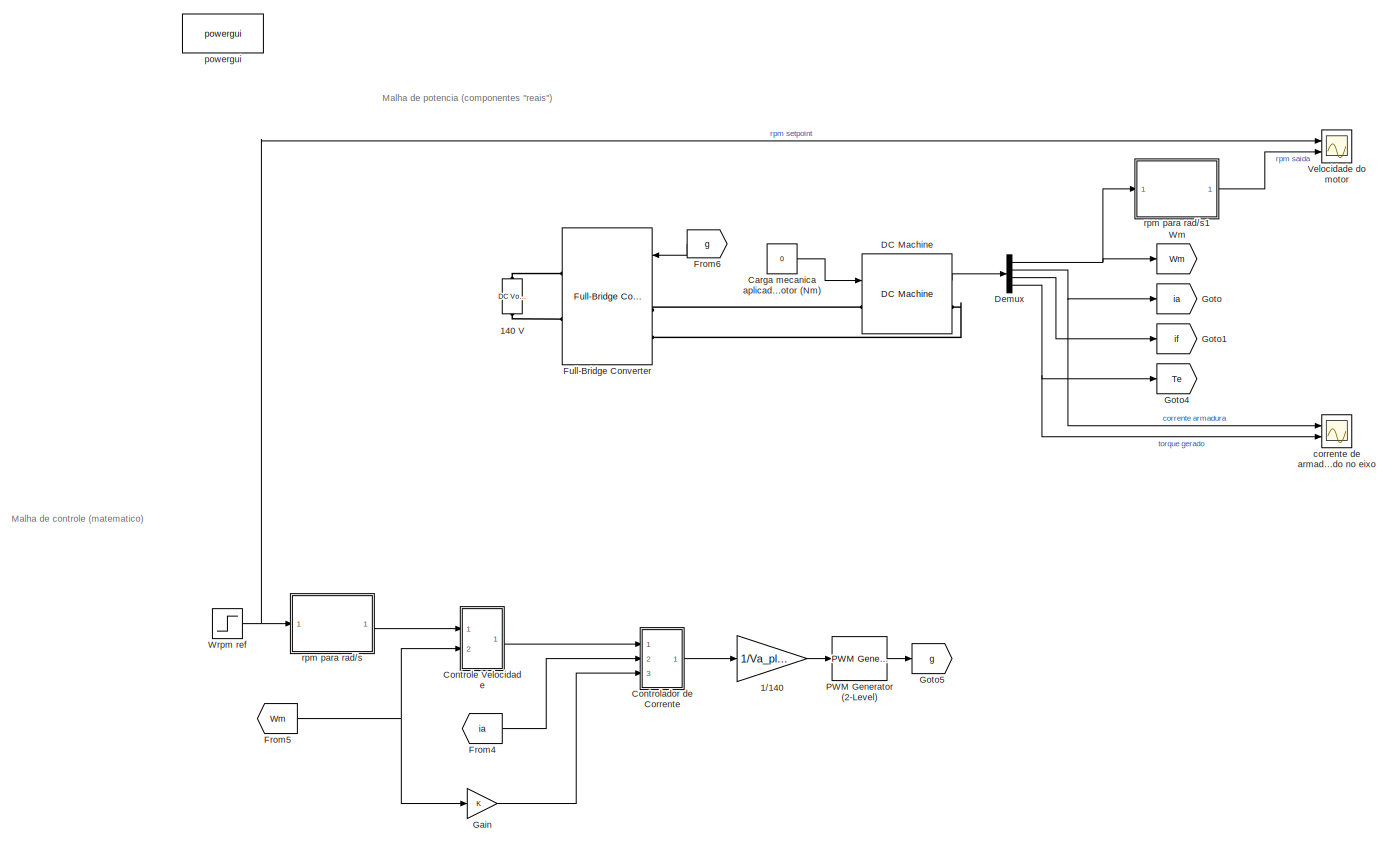
[diagram: root canvas - part 1/1, most of the canvas]
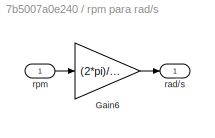
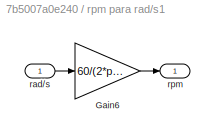
MODEL slx_7b5007a0e240
KIND model
CONFIG AbsTol = auto
CONFIG EnableMultiTasking = off
CONFIG FixedStep = auto
CONFIG MaxStep = auto
CONFIG MinStep = auto
CONFIG RelTol = 1e-6
CONFIG SampleTimeConstraint = Unconstrained
CONFIG SolverName = VariableStepAuto
CONFIG StartTime = 0.0
CONFIG StopTime = 0.2
BLOCK [Gain] 1//140
  Gain = 1/Va_placa
BLOCK [Reference] 140 V  REF=spsDCVoltageSourceLib/DC Voltage Source
  NameLocation = left
  Ports = [0, 0, 0, 0, 0, 1, 1]
  SourceBlock = spsDCVoltageSourceLib/DC Voltage Source
  SourceProductBaseCode = PS
  SourceType = DC Voltage Source
BLOCK [Constant] Carga mecanica aplicada ao eixo do motor (Nm)
  Value = 0
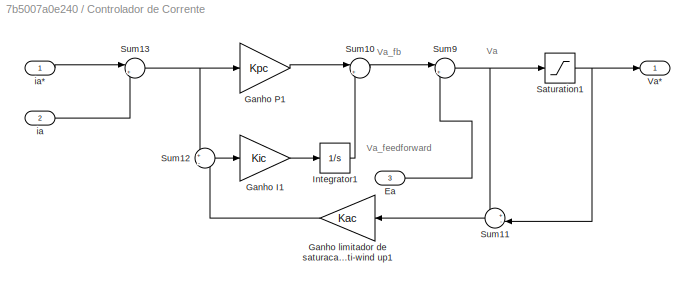
BLOCK [SubSystem] Controlador de Corrente
  Ports = [3, 1]
  RequestExecContextInheritance = off
BLOCK [Inport] Controlador de Corrente/Ea
  Port = 3
BLOCK [Gain] Controlador de Corrente/Ganho I1
  Gain = Kic
BLOCK [Gain] Controlador de Corrente/Ganho P1
  Gain = Kpc
BLOCK [Gain] Controlador de Corrente/Ganho limitador de saturacao anti-wind up1
  Gain = Kac
BLOCK [Integrator] Controlador de Corrente/Integrator1
  Ports = [1, 1]
BLOCK [Saturate] Controlador de Corrente/Saturation1
  LowerLimit = -Va_placa
  UpperLimit = Va_placa
BLOCK [Sum] Controlador de Corrente/Sum10
  Inputs = |++
  Ports = [2, 1]
BLOCK [Sum] Controlador de Corrente/Sum11
  Inputs = +-|
  Ports = [2, 1]
BLOCK [Sum] Controlador de Corrente/Sum12
  Inputs = +|-
  Ports = [2, 1]
BLOCK [Sum] Controlador de Corrente/Sum13
  Inputs = |+-
  Ports = [2, 1]
BLOCK [Sum] Controlador de Corrente/Sum9
  Inputs = |++
  Ports = [2, 1]
BLOCK [Outport] Controlador de Corrente/Va*
BLOCK [Inport] Controlador de Corrente/ia
  Port = 2
BLOCK [Inport] Controlador de Corrente/ia*
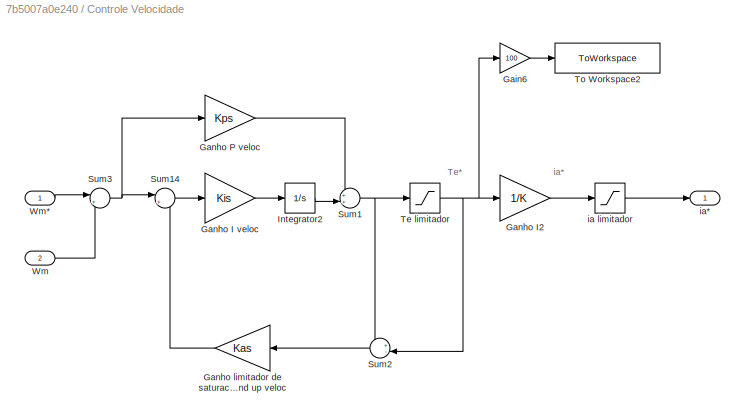
BLOCK [SubSystem] Controle Velocidade
  Ports = [2, 1]
  RequestExecContextInheritance = off
BLOCK [Gain] Controle Velocidade/Gain6
  Gain = 100
BLOCK [Gain] Controle Velocidade/Ganho I veloc
  Gain = Kis
BLOCK [Gain] Controle Velocidade/Ganho I2
  Gain = 1/K
BLOCK [Gain] Controle Velocidade/Ganho P veloc
  Gain = Kps
BLOCK [Gain] Controle Velocidade/Ganho limitador de saturacao anti-wind up veloc
  Gain = Kas
BLOCK [Integrator] Controle Velocidade/Integrator2
  Ports = [1, 1]
BLOCK [Sum] Controle Velocidade/Sum1
  Inputs = ++|
  Ports = [2, 1]
BLOCK [Sum] Controle Velocidade/Sum14
  Inputs = |+-
  Ports = [2, 1]
BLOCK [Sum] Controle Velocidade/Sum2
  Inputs = +-|
  Ports = [2, 1]
BLOCK [Sum] Controle Velocidade/Sum3
  Inputs = |+-
  Ports = [2, 1]
BLOCK [Saturate] Controle Velocidade/Te limitador
  LowerLimit = -Te_placa
  UpperLimit = Te_placa
BLOCK [ToWorkspace] Controle Velocidade/To Workspace2
  MaxDataPoints = inf
  Ports = [1]
  SampleTime = -1
  SaveFormat = Timeseries
  VariableName = Te_100
BLOCK [Inport] Controle Velocidade/Wm
  Port = 2
BLOCK [Inport] Controle Velocidade/Wm*
BLOCK [Saturate] Controle Velocidade/ia limitador
  LowerLimit = -Ia_placa
  UpperLimit = Ia_placa
BLOCK [Outport] Controle Velocidade/ia*
BLOCK [Reference] DC Machine  REF=spsDCMachineLib/DC Machine
  Ports = [1, 1, 0, 0, 0, 1, 1]
  SourceBlock = spsDCMachineLib/DC Machine
  SourceProductBaseCode = PS
  SourceType = DC machine
BLOCK [Demux] Demux
  Ports = [1, 4]
BLOCK [From] From4
  GotoTag = ia
BLOCK [From] From5
  GotoTag = Wm
BLOCK [From] From6
  GotoTag = g
BLOCK [Reference] Full-Bridge Converter  REF=spsFullBridgeConverterLib/Full-Bridge Converter
  Ports = [2, 0, 0, 0, 0, 2, 2]
  SourceBlock = spsFullBridgeConverterLib/Full-Bridge Converter
  SourceProductBaseCode = PS
  SourceType = Full-Bridge Converter
BLOCK [Gain] Gain
  Gain = K
BLOCK [Goto] Goto
  GotoTag = ia
BLOCK [Goto] Goto1
  GotoTag = if
BLOCK [Goto] Goto4
  GotoTag = Te
BLOCK [Goto] Goto5
  GotoTag = g
BLOCK [Reference] PWM Generator (2-Level)  REF=spsPWMGenerator2LevelLib/PWM Generator
(2-Level)
  Ports = [1, 1]
  SourceBlock = spsPWMGenerator2LevelLib/PWM Generator\n(2-Level)
  SourceProductBaseCode = PS
  SourceType = PWM Generator (2-Level)
BLOCK [Scope] Velocidade do motor
  Floating = off
  NumInputPorts = 2
  Ports = [2]
  ScopeSpecificationString = Simulink.scopes.TimeScopeBlockCfg('CurrentConfiguration', extmgr.ConfigurationSet(extmgr.Configuration('Core','General UI',true),extmgr.Configuration('Core','Source UI',true),extmgr.Configuration('Sources','WiredSimulink',true,'DataLoggingVariableName','ScopeData1'),extmgr.Configuration('Visuals','Time Domain',true,'SerializedDisplays',{struct('MinYLimReal','-326.40856','MaxYLimReal','2936.45757',...<+1448ch>
BLOCK [Goto] Wm
  GotoTag = Wm
BLOCK [Step] Wrpm ref
  After = 2500
  SampleTime = 0
  Time = 0.05
BLOCK [Scope] corrente de armadura e torque gerado no eixo
  Floating = off
  NumInputPorts = 2
  Ports = [2]
  ScopeSpecificationString = Simulink.scopes.TimeScopeBlockCfg('CurrentConfiguration', extmgr.ConfigurationSet(extmgr.Configuration('Core','General UI',true),extmgr.Configuration('Core','Source UI',true),extmgr.Configuration('Sources','WiredSimulink',true,'DataLoggingVariableName','ScopeData1'),extmgr.Configuration('Visuals','Time Domain',true,'SerializedDisplays',{struct('MinYLimReal','-6.2334','MaxYLimReal','30.80938','YLab...<+1422ch>
BLOCK [Reference] powergui  REF=spspowerguiLib/powergui
  Ports = []
  Priority = 1
  SourceBlock = spspowerguiLib/powergui
  SourceProductBaseCode = PS
  SourceType = PSB option menu block
BLOCK [SubSystem] rpm para rad//s
  Ports = [1, 1]
  RequestExecContextInheritance = off
BLOCK [Gain] rpm para rad//s/Gain6
  Gain = (2*pi)/60
BLOCK [Outport] rpm para rad//s/rad//s
BLOCK [Inport] rpm para rad//s/rpm
BLOCK [SubSystem] rpm para rad//s1
  Ports = [1, 1]
  RequestExecContextInheritance = off
BLOCK [Gain] rpm para rad//s1/Gain6
  Gain = 60/(2*pi)
BLOCK [Inport] rpm para rad//s1/rad//s
BLOCK [Outport] rpm para rad//s1/rpm
ANNOTATION (root): Malha de controle (matematico)
ANNOTATION (root): Malha de potencia (componentes "reais")
ANNOTATION Controlador de Corrente: Va
ANNOTATION Controlador de Corrente: Va_fb
ANNOTATION Controlador de Corrente: Va_feedforward
ANNOTATION Controle Velocidade: Te*
ANNOTATION Controle Velocidade: ia*
LINE 1//140:1 -> PWM Generator (2-Level):1
LINE Carga mecanica aplicada ao eixo do motor (Nm):1 -> DC Machine:1
LINE Controlador de Corrente/Ea:1 -> Controlador de Corrente/Sum9:2
LINE Controlador de Corrente/Ganho I1:1 -> Controlador de Corrente/Integrator1:1
LINE Controlador de Corrente/Ganho P1:1 -> Controlador de Corrente/Sum10:1
LINE Controlador de Corrente/Ganho limitador de saturacao anti-wind up1:1 -> Controlador de Corrente/Sum12:2
LINE Controlador de Corrente/Integrator1:1 -> Controlador de Corrente/Sum10:2
NET Controlador de Corrente/Saturation1:1 -> Controlador de Corrente/Sum11:2, Controlador de Corrente/Va*:1
LINE Controlador de Corrente/Sum10:1 -> Controlador de Corrente/Sum9:1
LINE Controlador de Corrente/Sum11:1 -> Controlador de Corrente/Ganho limitador de saturacao anti-wind up1:1
LINE Controlador de Corrente/Sum12:1 -> Controlador de Corrente/Ganho I1:1
NET Controlador de Corrente/Sum13:1 -> Controlador de Corrente/Ganho P1:1, Controlador de Corrente/Sum12:1
NET Controlador de Corrente/Sum9:1 -> Controlador de Corrente/Saturation1:1, Controlador de Corrente/Sum11:1
LINE Controlador de Corrente/ia*:1 -> Controlador de Corrente/Sum13:1
LINE Controlador de Corrente/ia:1 -> Controlador de Corrente/Sum13:2
LINE Controlador de Corrente:1 -> 1//140:1
LINE Controle Velocidade/Gain6:1 -> Controle Velocidade/To Workspace2:1
LINE Controle Velocidade/Ganho I veloc:1 -> Controle Velocidade/Integrator2:1
LINE Controle Velocidade/Ganho I2:1 -> Controle Velocidade/ia limitador:1
LINE Controle Velocidade/Ganho P veloc:1 -> Controle Velocidade/Sum1:1
LINE Controle Velocidade/Ganho limitador de saturacao anti-wind up veloc:1 -> Controle Velocidade/Sum14:2
LINE Controle Velocidade/Integrator2:1 -> Controle Velocidade/Sum1:2
LINE Controle Velocidade/Sum14:1 -> Controle Velocidade/Ganho I veloc:1
NET Controle Velocidade/Sum1:1 -> Controle Velocidade/Sum2:1, Controle Velocidade/Te limitador:1
LINE Controle Velocidade/Sum2:1 -> Controle Velocidade/Ganho limitador de saturacao anti-wind up veloc:1
NET Controle Velocidade/Sum3:1 -> Controle Velocidade/Ganho P veloc:1, Controle Velocidade/Sum14:1
NET Controle Velocidade/Te limitador:1 -> Controle Velocidade/Gain6:1, Controle Velocidade/Ganho I2:1, Controle Velocidade/Sum2:2
LINE Controle Velocidade/Wm*:1 -> Controle Velocidade/Sum3:1
LINE Controle Velocidade/Wm:1 -> Controle Velocidade/Sum3:2
LINE Controle Velocidade/ia limitador:1 -> Controle Velocidade/ia*:1
LINE Controle Velocidade:1 -> Controlador de Corrente:1
LINE DC Machine:1 -> Demux:1
NET Demux:1 -> Wm:1, rpm para rad//s1:1
NET Demux:2 -> Goto:1, corrente de armadura e torque gerado no eixo:1
LINE Demux:3 -> Goto1:1
NET Demux:4 -> Goto4:1, corrente de armadura e torque gerado no eixo:2
LINE From4:1 -> Controlador de Corrente:2
NET From5:1 -> Controle Velocidade:2, Gain:1
LINE From6:1 -> Full-Bridge Converter:1
LINE Gain:1 -> Controlador de Corrente:3
LINE PWM Generator (2-Level):1 -> Goto5:1
NET Wrpm ref:1 -> Velocidade do motor:1, rpm para rad//s:1
LINE rpm para rad//s/Gain6:1 -> rpm para rad//s/rad//s:1
LINE rpm para rad//s/rpm:1 -> rpm para rad//s/Gain6:1
LINE rpm para rad//s1/Gain6:1 -> rpm para rad//s1/rpm:1
LINE rpm para rad//s1/rad//s:1 -> rpm para rad//s1/Gain6:1
LINE rpm para rad//s1:1 -> Velocidade do motor:2
LINE rpm para rad//s:1 -> Controle Velocidade:1
PLINE 140 V:LConn1 -- Full-Bridge Converter:RConn2
PLINE 140 V:RConn1 -- Full-Bridge Converter:RConn1
PLINE DC Machine:LConn1 -- Full-Bridge Converter:LConn1
PLINE DC Machine:RConn1 -- Full-Bridge Converter:LConn2
note: NET lines group one-source signal fan-out (src -> all destinations, sorted); 1:1 wires keep LINE
